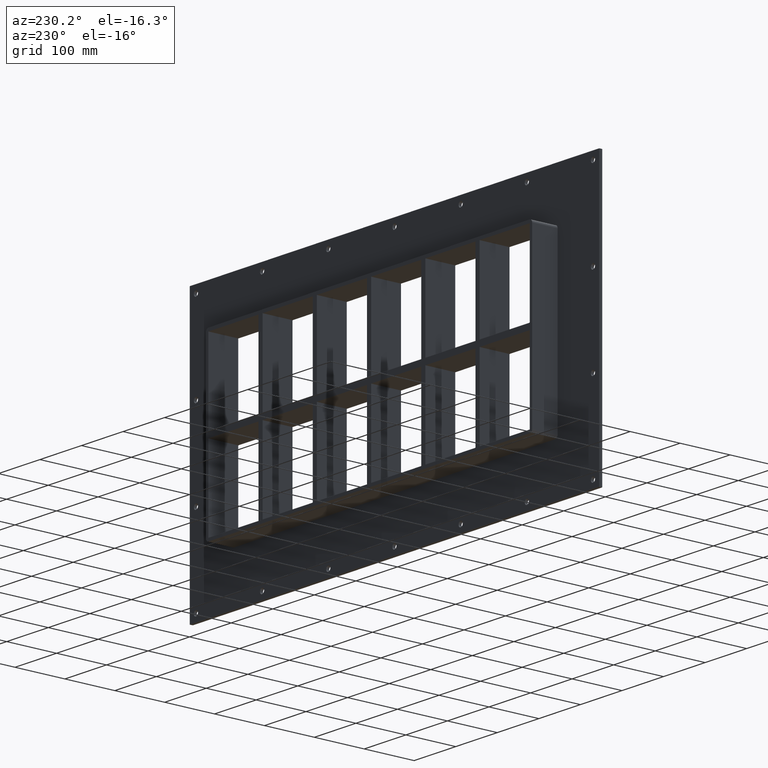
[diagram: clean part render]
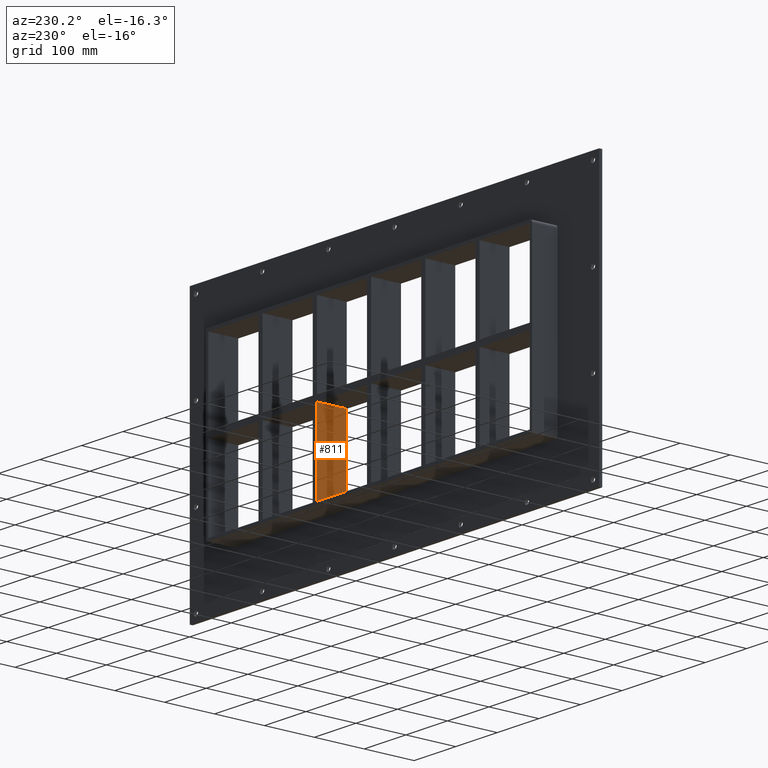
[diagram: same view with one face highlighted and labeled with its STEP entity id]
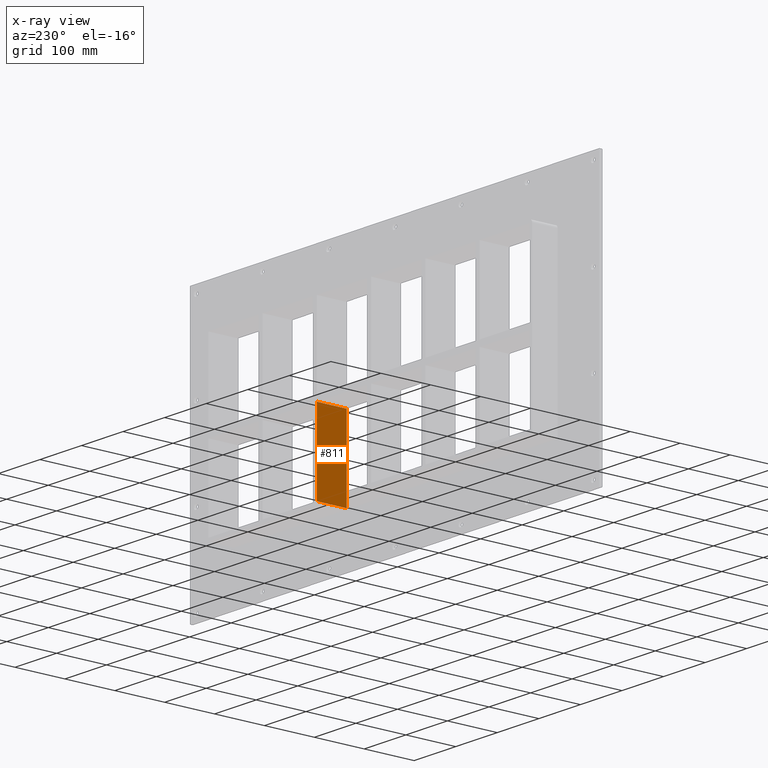
[diagram: x-ray of the same camera — body ghosted, the highlighted face saturated]
A machine part, auxiliary view. The second image highlights one B-rep face of the part: STEP entity #811.
The next image is the same camera in x-ray: the body ghosted, the highlighted face saturated — about 0% of this face is hidden behind the body in this view.
In plain terms, the highlighted planar face has unit normal (-1, 0, 0).
Its self-contained STEP definition (entity closure, byte-faithful):
#772=CARTESIAN_POINT('',(125.49999999999855,-3.0,-165.49999999999997));
#773=DIRECTION('',(-1.0,0.0,0.0));
#774=DIRECTION('',(0.0,0.0,1.0));
#775=AXIS2_PLACEMENT_3D('',#772,#773,#774);
#776=PLANE('',#775);
#777=CARTESIAN_POINT('',(125.49999999999852,57.0,-6.000000000009411));
#778=VERTEX_POINT('',#777);
#779=CARTESIAN_POINT('',(125.49999999999852,-3.0,-6.000000000009411));
#780=VERTEX_POINT('',#779);
#781=CARTESIAN_POINT('',(125.49999999999852,57.0,-6.00000000000942));
#782=DIRECTION('',(0.0,-1.0,0.0));
#783=VECTOR('',#782,60.0);
#784=LINE('',#781,#783);
#785=EDGE_CURVE('',#778,#780,#784,.T.);
#786=ORIENTED_EDGE('',*,*,#785,.F.);
#787=CARTESIAN_POINT('',(125.49999999999855,57.0,-165.49999999999997));
#788=VERTEX_POINT('',#787);
#789=CARTESIAN_POINT('',(125.49999999999855,57.0,-165.49999999999997));
#790=DIRECTION('',(0.0,0.0,1.0));
#791=VECTOR('',#790,159.49999999999056);
#792=LINE('',#789,#791);
#793=EDGE_CURVE('',#788,#778,#792,.T.);
#794=ORIENTED_EDGE('',*,*,#793,.F.);
#795=CARTESIAN_POINT('',(125.49999999999855,-3.0,-165.49999999999997));
#796=VERTEX_POINT('',#795);
#797=CARTESIAN_POINT('',(125.49999999999855,-3.0,-165.49999999999997));
#798=DIRECTION('',(0.0,1.0,0.0));
#799=VECTOR('',#798,60.000000000000007);
#800=LINE('',#797,#799);
#801=EDGE_CURVE('',#796,#788,#800,.T.);
#802=ORIENTED_EDGE('',*,*,#801,.F.);
#803=CARTESIAN_POINT('',(125.49999999999855,-3.0,-165.49999999999997));
#804=DIRECTION('',(0.0,0.0,1.0));
#805=VECTOR('',#804,159.49999999999056);
#806=LINE('',#803,#805);
#807=EDGE_CURVE('',#796,#780,#806,.T.);
#808=ORIENTED_EDGE('',*,*,#807,.T.);
#809=EDGE_LOOP('',(#786,#794,#802,#808));
#810=FACE_OUTER_BOUND('',#809,.T.);
#811=ADVANCED_FACE('',(#810),#776,.T.);